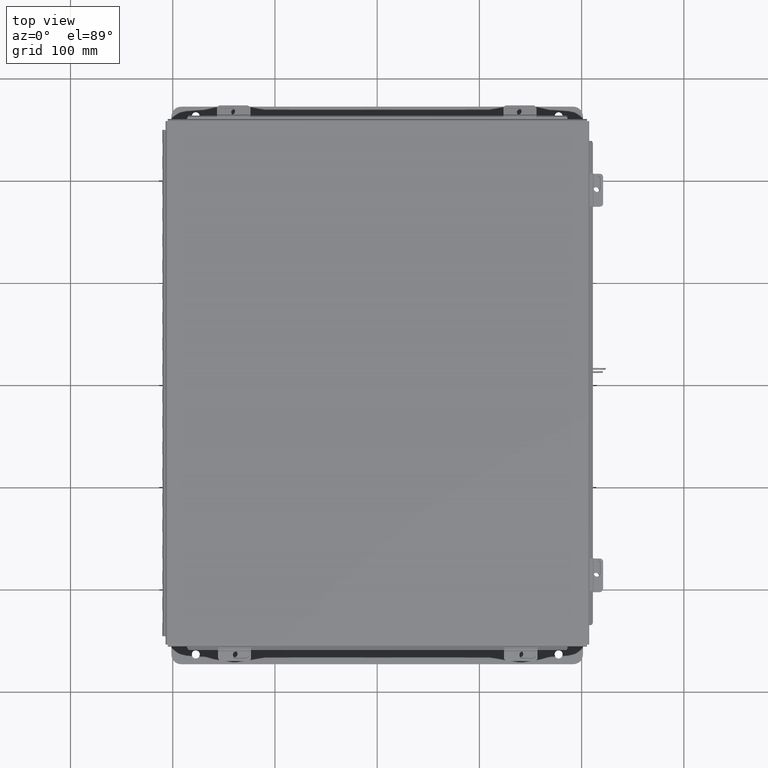
[diagram: clean part render]
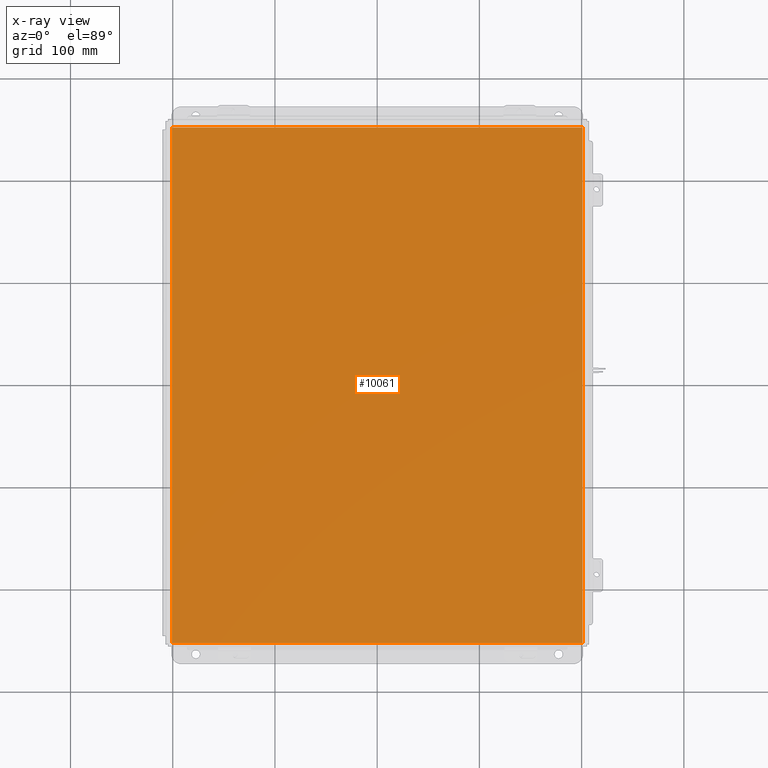
[diagram: x-ray — body ghosted, one internal face saturated and labeled with its STEP entity id]
A machine part, top view, then the same camera in x-ray: the body is ghosted and one INTERNAL B-rep face — a face not visible from any outside direction — is saturated and labeled: STEP entity #10061.
In plain terms, the highlighted planar face has unit normal (0, 0, -1).
Its self-contained STEP definition (entity closure, byte-faithful):
#466 = EDGE_CURVE ( 'NONE', #18732, #6023, #15005, .T. ) ;
#1020 = FACE_OUTER_BOUND ( 'NONE', #4411, .T. ) ;
#2301 = VECTOR ( 'NONE', #3906, 39.37007874015748100 ) ;
#3906 = DIRECTION ( 'NONE',  ( 1.000000000000000000, -1.365923996832131600E-016, 0.0000000000000000000 ) ) ;
#4243 = CARTESIAN_POINT ( 'NONE',  ( 0.0000000000000000000, 0.0000000000000000000, 0.0000000000000000000 ) ) ;
#4411 = EDGE_LOOP ( 'NONE', ( #15550, #17974, #17562, #9344 ) ) ;
#5384 = DIRECTION ( 'NONE',  ( -1.000000000000000000, -0.0000000000000000000, -0.0000000000000000000 ) ) ;
#6023 = VERTEX_POINT ( 'NONE', #15505 ) ;
#6172 = LINE ( 'NONE', #21824, #19985 ) ;
#7043 = DIRECTION ( 'NONE',  ( -0.0000000000000000000, -1.000000000000000000, -0.0000000000000000000 ) ) ;
#8162 = LINE ( 'NONE', #17451, #16793 ) ;
#8365 = DIRECTION ( 'NONE',  ( -0.0000000000000000000, 1.000000000000000000, 8.208677865577646300E-017 ) ) ;
#9264 = AXIS2_PLACEMENT_3D ( 'NONE', #4243, #13741, #10477 ) ;
#9344 = ORIENTED_EDGE ( 'NONE', *, *, #21604, .T. ) ;
#10061 = ADVANCED_FACE ( 'NONE', ( #1020 ), #17315, .F. ) ;
#10118 = VERTEX_POINT ( 'NONE', #16252 ) ;
#10446 = VECTOR ( 'NONE', #8365, 39.37007874015748100 ) ;
#10476 = CARTESIAN_POINT ( 'NONE',  ( 7.912300000000002800, 9.925299999999992900, 4.268512490100411300E-017 ) ) ;
#10477 = DIRECTION ( 'NONE',  ( -1.000000000000000000, 0.0000000000000000000, -0.0000000000000000000 ) ) ;
#11464 = EDGE_CURVE ( 'NONE', #16159, #10118, #6172, .T. ) ;
#12574 = CARTESIAN_POINT ( 'NONE',  ( -7.999999999999996400, -9.925299999999998200, 0.0000000000000000000 ) ) ;
#13741 = DIRECTION ( 'NONE',  ( 0.0000000000000000000, 0.0000000000000000000, -1.000000000000000000 ) ) ;
#15004 = LINE ( 'NONE', #12574, #2301 ) ;
#15005 = LINE ( 'NONE', #21793, #10446 ) ;
#15505 = CARTESIAN_POINT ( 'NONE',  ( -7.912299999999996600, 9.925299999999998200, 3.158699242674304400E-016 ) ) ;
#15550 = ORIENTED_EDGE ( 'NONE', *, *, #11464, .F. ) ;
#16159 = VERTEX_POINT ( 'NONE', #10476 ) ;
#16215 = EDGE_CURVE ( 'NONE', #16159, #6023, #8162, .T. ) ;
#16252 = CARTESIAN_POINT ( 'NONE',  ( 7.912300000000002800, -9.925300000000000000, 4.268512490100411300E-017 ) ) ;
#16793 = VECTOR ( 'NONE', #5384, 39.37007874015748100 ) ;
#17315 = PLANE ( 'NONE',  #9264 ) ;
#17451 = CARTESIAN_POINT ( 'NONE',  ( -7.999999999999996400, 9.925299999999998200, 0.0000000000000000000 ) ) ;
#17562 = ORIENTED_EDGE ( 'NONE', *, *, #466, .F. ) ;
#17974 = ORIENTED_EDGE ( 'NONE', *, *, #16215, .T. ) ;
#18732 = VERTEX_POINT ( 'NONE', #18998 ) ;
#18998 = CARTESIAN_POINT ( 'NONE',  ( -7.912299999999996600, -9.925299999999998200, -1.314701846950926700E-015 ) ) ;
#19985 = VECTOR ( 'NONE', #7043, 39.37007874015748100 ) ;
#21604 = EDGE_CURVE ( 'NONE', #18732, #10118, #15004, .T. ) ;
#21793 = CARTESIAN_POINT ( 'NONE',  ( -7.912299999999996600, -9.925299999999998200, -1.314701846950926700E-015 ) ) ;
#21824 = CARTESIAN_POINT ( 'NONE',  ( 7.912300000000002800, 9.925299999999996500, 4.268512490100411300E-017 ) ) ;